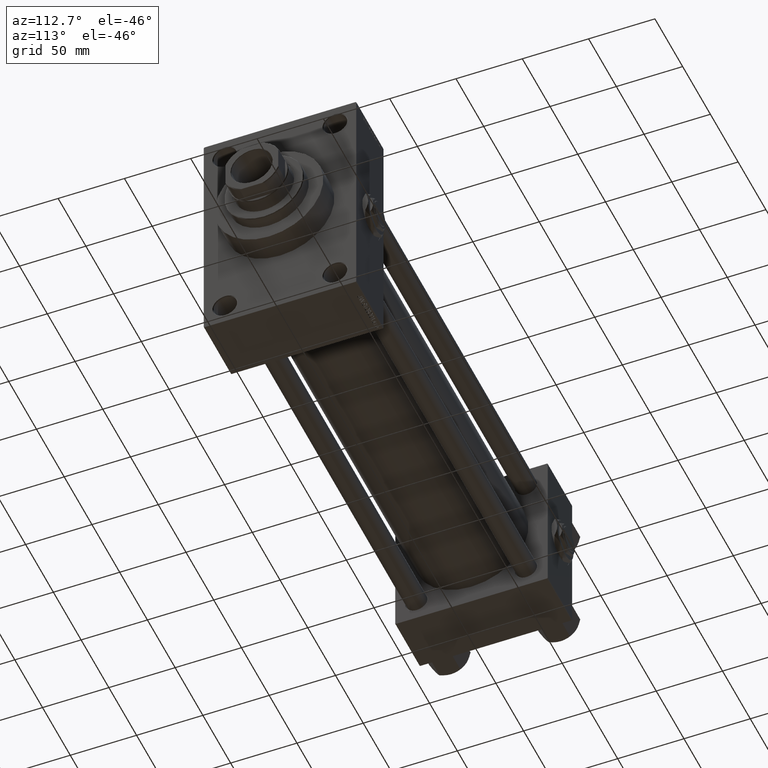
[diagram: clean part render]
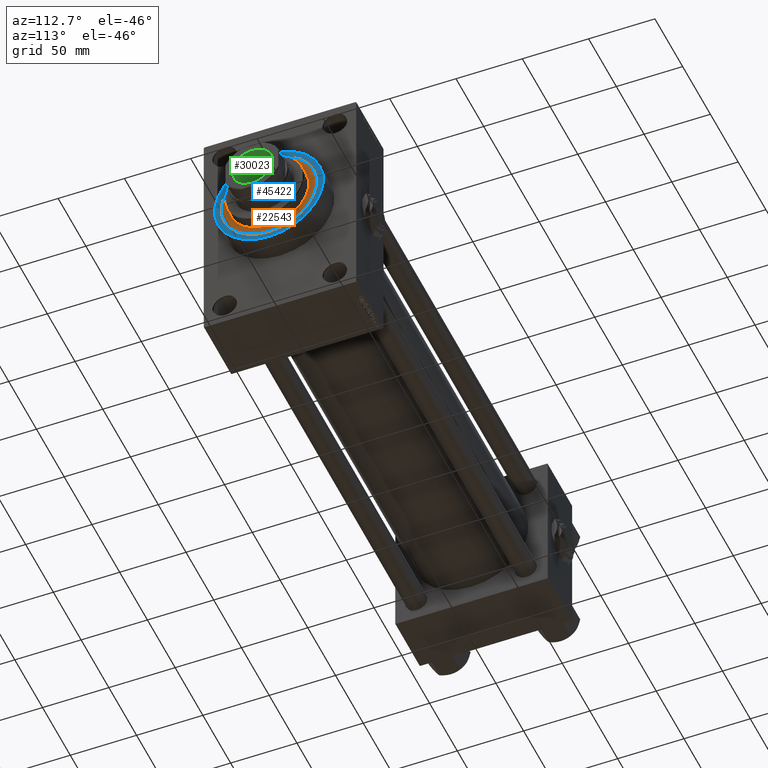
[diagram: same view with three faces highlighted in distinct colors, each labeled with its STEP entity id]
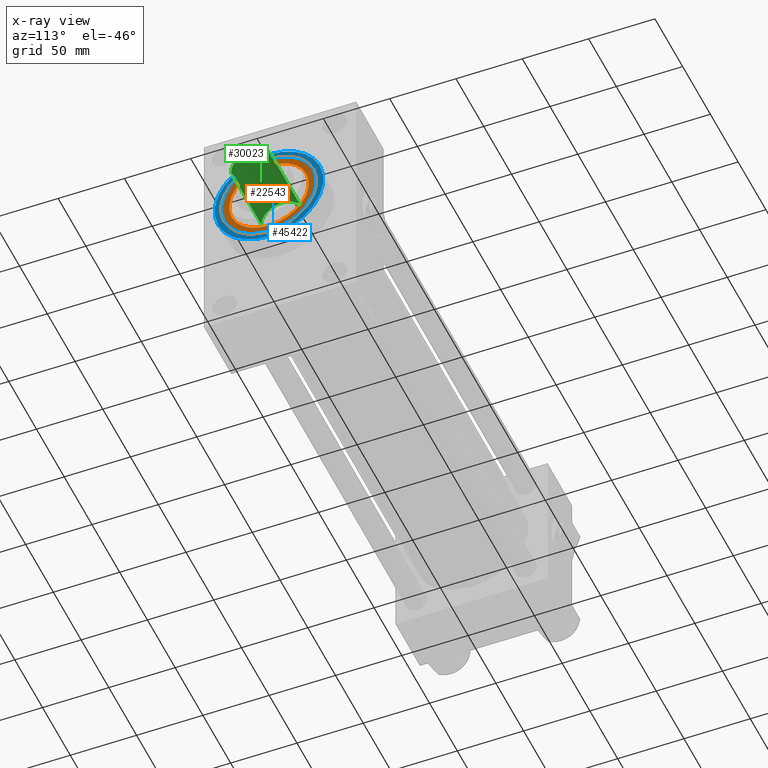
[diagram: x-ray of the same camera — body ghosted, the three highlighted faces saturated]
A machine part, auxiliary view with three faces highlighted in distinct colors.
The next image is the same camera in x-ray (body ghosted, the three faces saturated) — at least one of them is partly hidden behind the body in this view.
Their STEP definitions:

[orange] entity #22543 — the highlighted planar face has unit normal (1, -0, -0).
#1620 = CIRCLE ( 'NONE', #49034, 30.00000000000000000 ) ;
#1846 = CARTESIAN_POINT ( 'NONE',  ( 0.000000000000000000, 0.000000000000000000, 43.25999999999999801 ) ) ;
#3015 = EDGE_CURVE ( 'NONE', #41565, #7000, #24787, .T. ) ;
#5633 = FACE_OUTER_BOUND ( 'NONE', #29241, .T. ) ;
#7000 = VERTEX_POINT ( 'NONE', #49514 ) ;
#7437 = EDGE_CURVE ( 'NONE', #7000, #41565, #1620, .T. ) ;
#7523 = VERTEX_POINT ( 'NONE', #17440 ) ;
#7914 = AXIS2_PLACEMENT_3D ( 'NONE', #19283, #11736, #19786 ) ;
#8753 = AXIS2_PLACEMENT_3D ( 'NONE', #33240, #49343, #26447 ) ;
#9151 = DIRECTION ( 'NONE',  ( 0.000000000000000000, 0.000000000000000000, 1.000000000000000000 ) ) ;
#11736 = DIRECTION ( 'NONE',  ( 0.000000000000000000, 0.000000000000000000, 1.000000000000000000 ) ) ;
#14292 = DIRECTION ( 'NONE',  ( 1.000000000000000000, 0.000000000000000000, 0.000000000000000000 ) ) ;
#16457 = AXIS2_PLACEMENT_3D ( 'NONE', #39629, #28067, #46935 ) ;
#16841 = EDGE_LOOP ( 'NONE', ( #30630, #35484 ) ) ;
#17440 = CARTESIAN_POINT ( 'NONE',  ( -36.00000000000000000, 0.000000000000000000, 43.25999999999999801 ) ) ;
#19283 = CARTESIAN_POINT ( 'NONE',  ( 0.000000000000000000, 0.000000000000000000, 43.25999999999999801 ) ) ;
#19786 = DIRECTION ( 'NONE',  ( 1.000000000000000000, 0.000000000000000000, 0.000000000000000000 ) ) ;
#20746 = PLANE ( 'NONE',  #16457 ) ;
#21830 = DIRECTION ( 'NONE',  ( 0.000000000000000000, 0.000000000000000000, 1.000000000000000000 ) ) ;
#22543 = ADVANCED_FACE ( 'NONE', ( #35386, #5633 ), #20746, .T. ) ;
#24787 = CIRCLE ( 'NONE', #7914, 30.00000000000000000 ) ;
#26447 = DIRECTION ( 'NONE',  ( 1.000000000000000000, 0.000000000000000000, 0.000000000000000000 ) ) ;
#26915 = ORIENTED_EDGE ( 'NONE', *, *, #29426, .T. ) ;
#28059 = DIRECTION ( 'NONE',  ( 1.000000000000000000, 0.000000000000000000, 0.000000000000000000 ) ) ;
#28067 = DIRECTION ( 'NONE',  ( 0.000000000000000000, 0.000000000000000000, 1.000000000000000000 ) ) ;
#29241 = EDGE_LOOP ( 'NONE', ( #26915, #33327 ) ) ;
#29394 = CARTESIAN_POINT ( 'NONE',  ( 0.000000000000000000, 0.000000000000000000, 43.25999999999999801 ) ) ;
#29426 = EDGE_CURVE ( 'NONE', #7523, #39785, #39196, .T. ) ;
#30630 = ORIENTED_EDGE ( 'NONE', *, *, #3015, .F. ) ;
#33240 = CARTESIAN_POINT ( 'NONE',  ( 0.000000000000000000, 0.000000000000000000, 43.25999999999999801 ) ) ;
#33327 = ORIENTED_EDGE ( 'NONE', *, *, #35926, .T. ) ;
#35386 = FACE_BOUND ( 'NONE', #16841, .T. ) ;
#35484 = ORIENTED_EDGE ( 'NONE', *, *, #7437, .F. ) ;
#35926 = EDGE_CURVE ( 'NONE', #39785, #7523, #44105, .T. ) ;
#39196 = CIRCLE ( 'NONE', #44809, 36.00000000000000000 ) ;
#39629 = CARTESIAN_POINT ( 'NONE',  ( 0.000000000000000000, 0.000000000000000000, 43.25999999999999801 ) ) ;
#39785 = VERTEX_POINT ( 'NONE', #42419 ) ;
#41517 = CARTESIAN_POINT ( 'NONE',  ( -30.00000000000000000, 0.000000000000000000, 43.25999999999999801 ) ) ;
#41565 = VERTEX_POINT ( 'NONE', #41517 ) ;
#42419 = CARTESIAN_POINT ( 'NONE',  ( 36.00000000000000000, 4.408728476930470856E-15, 43.25999999999999801 ) ) ;
#44105 = CIRCLE ( 'NONE', #8753, 36.00000000000000000 ) ;
#44809 = AXIS2_PLACEMENT_3D ( 'NONE', #29394, #21830, #14292 ) ;
#46935 = DIRECTION ( 'NONE',  ( 1.000000000000000000, 0.000000000000000000, -0.000000000000000000 ) ) ;
#49034 = AXIS2_PLACEMENT_3D ( 'NONE', #1846, #9151, #28059 ) ;
#49343 = DIRECTION ( 'NONE',  ( 0.000000000000000000, 0.000000000000000000, 1.000000000000000000 ) ) ;
#49514 = CARTESIAN_POINT ( 'NONE',  ( 30.00000000000000000, 3.673940397442059178E-15, 43.25999999999999801 ) ) ;

[blue] entity #45422 — the highlighted planar face has unit normal (1, 0, 0).
#325 = CIRCLE ( 'NONE', #4315, 41.00000000000000000 ) ;
#626 = CARTESIAN_POINT ( 'NONE',  ( 409.0000000000000000, 5.021051876504148963E-15, -41.00000000000000000 ) ) ;
#1314 = CARTESIAN_POINT ( 'NONE',  ( 409.0000000000000000, 0.000000000000000000, 0.000000000000000000 ) ) ;
#4315 = AXIS2_PLACEMENT_3D ( 'NONE', #15699, #11925, #27286 ) ;
#6113 = CARTESIAN_POINT ( 'NONE',  ( 409.0000000000000000, 0.000000000000000000, -36.00000000000000000 ) ) ;
#6263 = ORIENTED_EDGE ( 'NONE', *, *, #44306, .F. ) ;
#7385 = VERTEX_POINT ( 'NONE', #626 ) ;
#10749 = CARTESIAN_POINT ( 'NONE',  ( 409.0000000000000000, 0.000000000000000000, 0.000000000000000000 ) ) ;
#11308 = CIRCLE ( 'NONE', #34636, 41.00000000000000000 ) ;
#11925 = DIRECTION ( 'NONE',  ( 1.000000000000000000, 0.000000000000000000, 0.000000000000000000 ) ) ;
#13140 = DIRECTION ( 'NONE',  ( 0.000000000000000000, 0.000000000000000000, -1.000000000000000000 ) ) ;
#15021 = AXIS2_PLACEMENT_3D ( 'NONE', #40561, #21427, #36793 ) ;
#15699 = CARTESIAN_POINT ( 'NONE',  ( 409.0000000000000000, 0.000000000000000000, 0.000000000000000000 ) ) ;
#16685 = VERTEX_POINT ( 'NONE', #33124 ) ;
#17765 = EDGE_CURVE ( 'NONE', #7385, #16685, #325, .T. ) ;
#18807 = DIRECTION ( 'NONE',  ( 0.000000000000000000, 0.000000000000000000, -1.000000000000000000 ) ) ;
#21256 = CIRCLE ( 'NONE', #43744, 36.00000000000000000 ) ;
#21427 = DIRECTION ( 'NONE',  ( 1.000000000000000000, 0.000000000000000000, 0.000000000000000000 ) ) ;
#22062 = EDGE_CURVE ( 'NONE', #35360, #38799, #21256, .T. ) ;
#26103 = DIRECTION ( 'NONE',  ( 1.000000000000000000, 0.000000000000000000, 0.000000000000000000 ) ) ;
#26971 = EDGE_LOOP ( 'NONE', ( #49365, #28444 ) ) ;
#27286 = DIRECTION ( 'NONE',  ( 0.000000000000000000, 0.000000000000000000, -1.000000000000000000 ) ) ;
#27338 = CARTESIAN_POINT ( 'NONE',  ( 409.0000000000000000, 0.000000000000000000, 0.000000000000000000 ) ) ;
#28074 = DIRECTION ( 'NONE',  ( 1.000000000000000000, 0.000000000000000000, 0.000000000000000000 ) ) ;
#28258 = DIRECTION ( 'NONE',  ( 1.000000000000000000, 0.000000000000000000, 0.000000000000000000 ) ) ;
#28444 = ORIENTED_EDGE ( 'NONE', *, *, #17765, .T. ) ;
#28642 = CIRCLE ( 'NONE', #42289, 36.00000000000000000 ) ;
#29001 = FACE_OUTER_BOUND ( 'NONE', #26971, .T. ) ;
#33112 = CARTESIAN_POINT ( 'NONE',  ( 409.0000000000000000, 4.408728476930470856E-15, 36.00000000000000000 ) ) ;
#33124 = CARTESIAN_POINT ( 'NONE',  ( 409.0000000000000000, 0.000000000000000000, 41.00000000000000000 ) ) ;
#34636 = AXIS2_PLACEMENT_3D ( 'NONE', #27338, #28074, #43412 ) ;
#35360 = VERTEX_POINT ( 'NONE', #6113 ) ;
#36793 = DIRECTION ( 'NONE',  ( 0.000000000000000000, 0.000000000000000000, -1.000000000000000000 ) ) ;
#37792 = FACE_BOUND ( 'NONE', #44089, .T. ) ;
#38799 = VERTEX_POINT ( 'NONE', #33112 ) ;
#39658 = ORIENTED_EDGE ( 'NONE', *, *, #22062, .F. ) ;
#39771 = EDGE_CURVE ( 'NONE', #16685, #7385, #11308, .T. ) ;
#40561 = CARTESIAN_POINT ( 'NONE',  ( 409.0000000000000000, 0.000000000000000000, 0.000000000000000000 ) ) ;
#42289 = AXIS2_PLACEMENT_3D ( 'NONE', #1314, #28258, #13140 ) ;
#43412 = DIRECTION ( 'NONE',  ( 0.000000000000000000, 0.000000000000000000, -1.000000000000000000 ) ) ;
#43744 = AXIS2_PLACEMENT_3D ( 'NONE', #10749, #26103, #18807 ) ;
#44089 = EDGE_LOOP ( 'NONE', ( #39658, #6263 ) ) ;
#44306 = EDGE_CURVE ( 'NONE', #38799, #35360, #28642, .T. ) ;
#44339 = PLANE ( 'NONE',  #15021 ) ;
#45422 = ADVANCED_FACE ( 'NONE', ( #37792, #29001 ), #44339, .T. ) ;
#49365 = ORIENTED_EDGE ( 'NONE', *, *, #39771, .T. ) ;

[green] entity #30023 — the highlighted cylindrical surface (edge-blend (fillet) strip) has radius 15.75 mm, axis along (1, 0, 0).
#1713 = ORIENTED_EDGE ( 'NONE', *, *, #18405, .F. ) ;
#2039 = DIRECTION ( 'NONE',  ( -0.000000000000000000, -0.000000000000000000, 1.000000000000000000 ) ) ;
#2524 = CARTESIAN_POINT ( 'NONE',  ( -15.74999999999999289, 1.928818708657080556E-15, 396.0000000000000000 ) ) ;
#2994 = DIRECTION ( 'NONE',  ( 1.000000000000000000, 0.000000000000000000, 0.000000000000000000 ) ) ;
#3211 = VERTEX_POINT ( 'NONE', #6131 ) ;
#3750 = ORIENTED_EDGE ( 'NONE', *, *, #22000, .T. ) ;
#4220 = VERTEX_POINT ( 'NONE', #23771 ) ;
#5482 = VERTEX_POINT ( 'NONE', #47363 ) ;
#5970 = AXIS2_PLACEMENT_3D ( 'NONE', #21103, #36462, #43751 ) ;
#6131 = CARTESIAN_POINT ( 'NONE',  ( 15.74999999999998934, 0.000000000000000000, 341.0000000000000000 ) ) ;
#8550 = CYLINDRICAL_SURFACE ( 'NONE', #40015, 15.74999999999999289 ) ;
#9059 = ORIENTED_EDGE ( 'NONE', *, *, #29892, .T. ) ;
#11012 = AXIS2_PLACEMENT_3D ( 'NONE', #48811, #33212, #2994 ) ;
#11825 = CIRCLE ( 'NONE', #11012, 15.74999999999998934 ) ;
#13215 = CIRCLE ( 'NONE', #5970, 15.74999999999999289 ) ;
#16096 = VERTEX_POINT ( 'NONE', #44084 ) ;
#18405 = EDGE_CURVE ( 'NONE', #3211, #4220, #23134, .T. ) ;
#19889 = DIRECTION ( 'NONE',  ( -0.000000000000000000, -0.000000000000000000, 1.000000000000000000 ) ) ;
#19904 = VECTOR ( 'NONE', #2039, 1000.000000000000000 ) ;
#21103 = CARTESIAN_POINT ( 'NONE',  ( 0.000000000000000000, 0.000000000000000000, 395.7000000000000455 ) ) ;
#22000 = EDGE_CURVE ( 'NONE', #16096, #4220, #13215, .T. ) ;
#23134 = LINE ( 'NONE', #33704, #26879 ) ;
#23771 = CARTESIAN_POINT ( 'NONE',  ( 15.74999999999999289, 0.000000000000000000, 395.7000000000000455 ) ) ;
#26879 = VECTOR ( 'NONE', #45023, 1000.000000000000000 ) ;
#26944 = DIRECTION ( 'NONE',  ( 1.000000000000000000, 0.000000000000000000, 0.000000000000000000 ) ) ;
#29892 = EDGE_CURVE ( 'NONE', #5482, #16096, #48349, .T. ) ;
#30023 = ADVANCED_FACE ( 'NONE', ( #42546 ), #8550, .F. ) ;
#33212 = DIRECTION ( 'NONE',  ( -0.000000000000000000, -0.000000000000000000, 1.000000000000000000 ) ) ;
#33704 = CARTESIAN_POINT ( 'NONE',  ( 15.74999999999999289, 0.000000000000000000, 396.0000000000000000 ) ) ;
#34337 = ORIENTED_EDGE ( 'NONE', *, *, #49758, .F. ) ;
#35465 = EDGE_LOOP ( 'NONE', ( #34337, #9059, #3750, #1713 ) ) ;
#36462 = DIRECTION ( 'NONE',  ( 0.000000000000000000, 0.000000000000000000, 1.000000000000000000 ) ) ;
#40015 = AXIS2_PLACEMENT_3D ( 'NONE', #42791, #19889, #26944 ) ;
#42546 = FACE_OUTER_BOUND ( 'NONE', #35465, .T. ) ;
#42791 = CARTESIAN_POINT ( 'NONE',  ( 0.000000000000000000, 0.000000000000000000, 396.0000000000000000 ) ) ;
#43751 = DIRECTION ( 'NONE',  ( 1.000000000000000000, 0.000000000000000000, 0.000000000000000000 ) ) ;
#44084 = CARTESIAN_POINT ( 'NONE',  ( -15.74999999999999289, 1.928818708657080556E-15, 395.7000000000000455 ) ) ;
#45023 = DIRECTION ( 'NONE',  ( -0.000000000000000000, -0.000000000000000000, 1.000000000000000000 ) ) ;
#47363 = CARTESIAN_POINT ( 'NONE',  ( -15.74999999999998934, 1.928818708657080161E-15, 341.0000000000000000 ) ) ;
#48349 = LINE ( 'NONE', #2524, #19904 ) ;
#48811 = CARTESIAN_POINT ( 'NONE',  ( 0.000000000000000000, 0.000000000000000000, 341.0000000000000000 ) ) ;
#49758 = EDGE_CURVE ( 'NONE', #5482, #3211, #11825, .T. ) ;